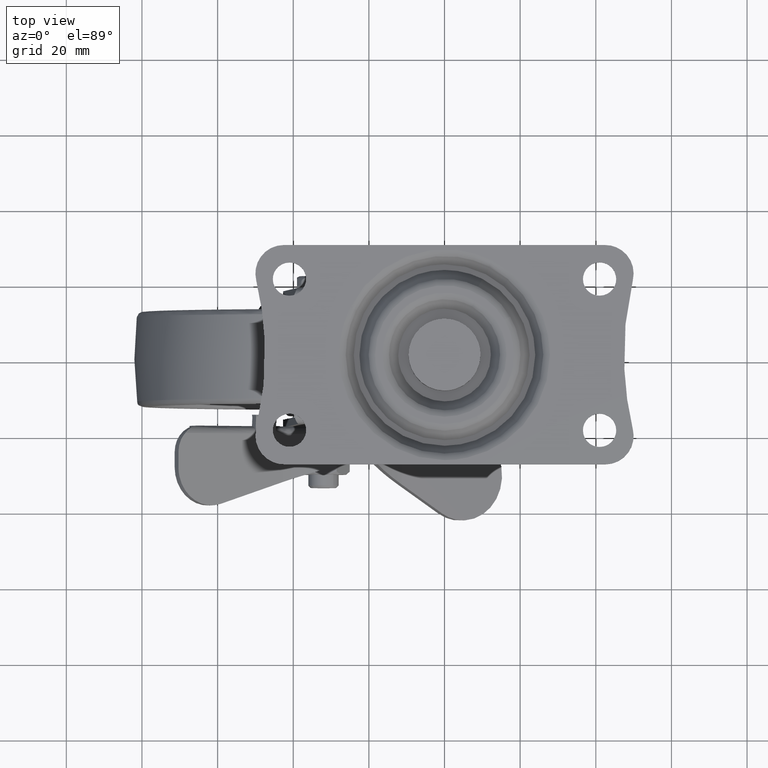
[diagram: clean part render]
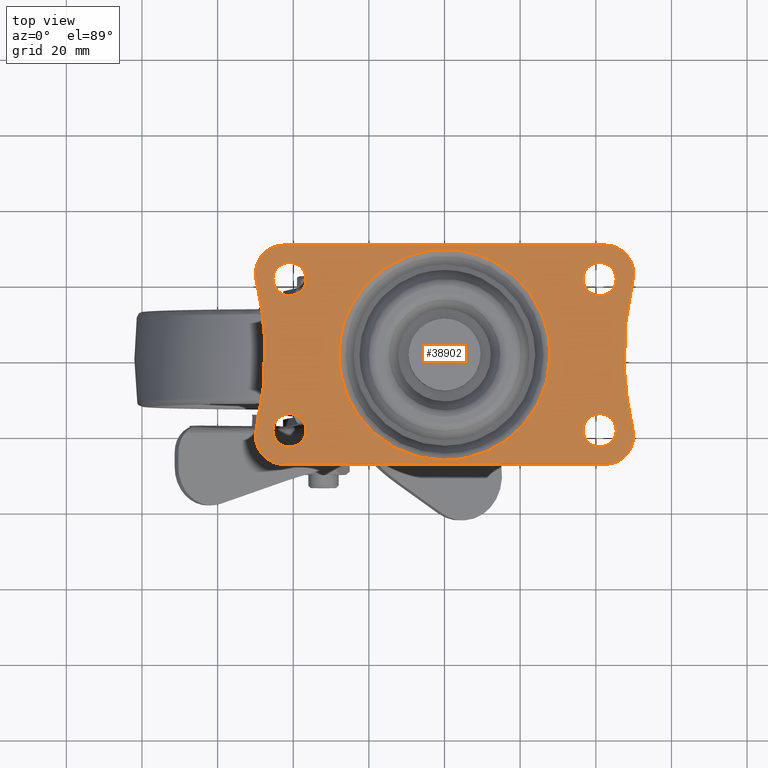
[diagram: same view with one face highlighted and labeled with its STEP entity id]
A machine part, top view. The second image highlights one B-rep face of the part: STEP entity #38902.
In plain terms, the highlighted face is a freeform B-spline surface patch.
Its self-contained STEP definition (entity closure, byte-faithful):
#32688=CARTESIAN_POINT('',(-43.841265772415063,23.359645778603419,2.0));
#32689=VERTEX_POINT('',#32688);
#32690=CARTESIAN_POINT('',(-45.400000100000007,20.0,2.0));
#32691=VERTEX_POINT('',#32690);
#32692=CARTESIAN_POINT('',(-43.841265772415063,23.359645778603419,2.0));
#32693=CARTESIAN_POINT('',(-44.297910684491733,22.974421921917550,2.000000000000003));
#32694=CARTESIAN_POINT('',(-44.924098626456377,22.174133111525929,1.999999999999999));
#32695=CARTESIAN_POINT('',(-45.335552286770223,20.955681271940069,1.999999999999999));
#32696=CARTESIAN_POINT('',(-45.400007563346342,20.278736757898368,2.0));
#32697=CARTESIAN_POINT('',(-45.400000100000007,20.0,2.0));
#32698=B_SPLINE_CURVE_WITH_KNOTS('',3,(#32692,#32693,#32694,#32695,#32696,#32697),.UNSPECIFIED.,.F.,.U.,(4,1,1,4),(0.000000126610487,1.791980629221837,2.986600119089665,3.822845099270182),.UNSPECIFIED.);
#32699=EDGE_CURVE('',#32689,#32691,#32698,.T.);
#32701=CARTESIAN_POINT('',(-40.999995359596333,15.599999900002450,2.0));
#32702=VERTEX_POINT('',#32701);
#32703=CARTESIAN_POINT('',(-45.400000100000007,20.0,2.0));
#32704=CARTESIAN_POINT('',(-45.400607781809661,19.423931304166221,1.999999999999999));
#32705=CARTESIAN_POINT('',(-45.220644751467617,18.524520095141650,1.999999999999998));
#32706=CARTESIAN_POINT('',(-44.539570743215272,17.286905966286380,1.999999999999997));
#32707=CARTESIAN_POINT('',(-43.713068037697902,16.460443572259070,2.000000000000006));
#32708=CARTESIAN_POINT('',(-42.475473924743874,15.779358898505309,1.999999999999988));
#32709=CARTESIAN_POINT('',(-41.576069646600359,15.599383116862450,2.000000000000011));
#32710=CARTESIAN_POINT('',(-40.999995359596333,15.599999900002450,2.0));
#32711=B_SPLINE_CURVE_WITH_KNOTS('',3,(#32703,#32704,#32705,#32706,#32707,#32708,#32709,#32710),.UNSPECIFIED.,.F.,.U.,(4,1,1,1,1,4),(0.000000453793878,1.727920351884094,2.699936220534486,4.211744282343696,5.183760151598372,6.911680047661599),.UNSPECIFIED.);
#32712=EDGE_CURVE('',#32691,#32702,#32711,.T.);
#32714=CARTESIAN_POINT('',(-36.599999900000000,20.0,2.0));
#32715=VERTEX_POINT('',#32714);
#32716=CARTESIAN_POINT('',(-40.999995359596333,15.599999900002450,2.0));
#32717=CARTESIAN_POINT('',(-40.676029447133722,15.599966680798840,2.000000000000001));
#32718=CARTESIAN_POINT('',(-39.920038995695997,15.683750069068511,2.000000000000001));
#32719=CARTESIAN_POINT('',(-38.935462604216788,16.063471376692029,2.0));
#32720=CARTESIAN_POINT('',(-38.107489630315243,16.646852834127259,2.000000000000001));
#32721=CARTESIAN_POINT('',(-37.508903166445542,17.275539651516169,1.999999999999998));
#32722=CARTESIAN_POINT('',(-37.005713955834601,18.070057284172030,2.000000000000005));
#32723=CARTESIAN_POINT('',(-36.675839400117930,18.992077417293881,2.0));
#32724=CARTESIAN_POINT('',(-36.599951778581442,19.676026319193419,2.000000000000006));
#32725=CARTESIAN_POINT('',(-36.599999900000000,20.0,2.0));
#32726=B_SPLINE_CURVE_WITH_KNOTS('',3,(#32716,#32717,#32718,#32719,#32720,#32721,#32722,#32723,#32724,#32725),.UNSPECIFIED.,.F.,.U.,(4,1,1,1,1,1,1,4),(0.000000460138867,0.971939552033052,2.267926207290485,3.131933760526557,3.995801355094923,4.859759915721695,5.939735721904775,6.911674816714666),.UNSPECIFIED.);
#32727=EDGE_CURVE('',#32702,#32715,#32726,.T.);
#32729=CARTESIAN_POINT('',(-37.808353373660353,23.028759234022509,1.999999999968882));
#32730=VERTEX_POINT('',#32729);
#32731=CARTESIAN_POINT('',(-36.599999900000000,20.0,2.0));
#32732=CARTESIAN_POINT('',(-36.599660215936602,20.522020335984472,1.999999999994639));
#32733=CARTESIAN_POINT('',(-36.800517970858103,21.635222263782779,1.999999999983197));
#32734=CARTESIAN_POINT('',(-37.400599769860648,22.600071287989550,1.999999999973289));
#32735=CARTESIAN_POINT('',(-37.808353373660353,23.028759234022509,1.999999999968882));
#32736=B_SPLINE_CURVE_WITH_KNOTS('',3,(#32731,#32732,#32733,#32734,#32735),.UNSPECIFIED.,.F.,.U.,(4,1,4),(0.000000125255836,1.565958961991485,3.340637922588658),.UNSPECIFIED.);
#32737=EDGE_CURVE('',#32715,#32730,#32736,.T.);
#32817=CARTESIAN_POINT('',(-41.000004640403688,24.400000099997548,2.0));
#32818=VERTEX_POINT('',#32817);
#32819=CARTESIAN_POINT('',(-41.000004640403688,24.400000099997548,2.0));
#32820=CARTESIAN_POINT('',(-41.482668478367749,24.400273100476308,1.999999999999998));
#32821=CARTESIAN_POINT('',(-42.512036758557500,24.228826140428591,2.000000000000011));
#32822=CARTESIAN_POINT('',(-43.423907623898501,23.713278709472821,1.999999999999993));
#32823=CARTESIAN_POINT('',(-43.841265772415063,23.359645778603419,2.0));
#32824=B_SPLINE_CURVE_WITH_KNOTS('',3,(#32819,#32820,#32821,#32822,#32823),.UNSPECIFIED.,.F.,.U.,(4,1,4),(0.000000084885139,1.447918023533089,3.088834453250993),.UNSPECIFIED.);
#32825=EDGE_CURVE('',#32818,#32689,#32824,.T.);
#32848=CARTESIAN_POINT('',(-37.808353373660353,23.028759234022509,1.999999999968882));
#32849=CARTESIAN_POINT('',(-38.243109330103223,23.488136943758889,1.999999999973118));
#32850=CARTESIAN_POINT('',(-39.252078322513412,24.170421980182098,1.999999999982962));
#32851=CARTESIAN_POINT('',(-40.441962493426288,24.400525060441819,1.999999999994558));
#32852=CARTESIAN_POINT('',(-41.000004640403688,24.400000099997548,2.0));
#32853=B_SPLINE_CURVE_WITH_KNOTS('',3,(#32848,#32849,#32850,#32851,#32852),.UNSPECIFIED.,.F.,.U.,(4,1,4),(0.000000129538670,1.897087739368949,3.571043816610434),.UNSPECIFIED.);
#32854=EDGE_CURVE('',#32730,#32818,#32853,.T.);
#32885=CARTESIAN_POINT('',(-43.841265772415063,-16.640354221396581,2.0));
#32886=VERTEX_POINT('',#32885);
#32887=CARTESIAN_POINT('',(-45.400000100000007,-20.0,2.0));
#32888=VERTEX_POINT('',#32887);
#32889=CARTESIAN_POINT('',(-43.841265772415063,-16.640354221396581,2.0));
#32890=CARTESIAN_POINT('',(-44.297944122459441,-17.025578615611138,1.999999999999996));
#32891=CARTESIAN_POINT('',(-44.873914087001417,-17.761846773011690,2.000000000000009));
#32892=CARTESIAN_POINT('',(-45.316808580303473,-18.964738673935319,1.999999999999987));
#32893=CARTESIAN_POINT('',(-45.400089114430763,-19.641608075696780,2.000000000000014));
#32894=CARTESIAN_POINT('',(-45.400000100000007,-20.0,2.0));
#32895=B_SPLINE_CURVE_WITH_KNOTS('',3,(#32889,#32890,#32891,#32892,#32893,#32894),.UNSPECIFIED.,.F.,.U.,(4,1,1,4),(0.000000126610975,1.791980629221926,2.747667593237608,3.822845099270195),.UNSPECIFIED.);
#32896=EDGE_CURVE('',#32886,#32888,#32895,.T.);
#32898=CARTESIAN_POINT('',(-40.999995359596340,-24.400000099997548,2.0));
#32899=VERTEX_POINT('',#32898);
#32900=CARTESIAN_POINT('',(-45.400000100000007,-20.0,2.0));
#32901=CARTESIAN_POINT('',(-45.400034501561407,-20.323967444538670,1.999999999999999));
#32902=CARTESIAN_POINT('',(-45.316224157012762,-21.079937864258980,2.000000000000004));
#32903=CARTESIAN_POINT('',(-44.858137376711007,-22.268306735741682,1.999999999999994));
#32904=CARTESIAN_POINT('',(-43.954274757274227,-23.369711784384361,2.000000000000009));
#32905=CARTESIAN_POINT('',(-42.619557003008801,-24.192013220013610,1.999999999999988));
#32906=CARTESIAN_POINT('',(-41.576019266494619,-24.400596673424321,2.000000000000013));
#32907=CARTESIAN_POINT('',(-40.999995359596340,-24.400000099997548,2.0));
#32908=B_SPLINE_CURVE_WITH_KNOTS('',3,(#32900,#32901,#32902,#32903,#32904,#32905,#32906,#32907),.UNSPECIFIED.,.F.,.U.,(4,1,1,1,1,4),(0.000000453788219,0.971940283342268,2.267927917545537,3.779744377931400,5.183760151597596,6.911680047661633),.UNSPECIFIED.);
#32909=EDGE_CURVE('',#32888,#32899,#32908,.T.);
#32911=CARTESIAN_POINT('',(-36.599999900000000,-20.0,2.0));
#32912=VERTEX_POINT('',#32911);
#32913=CARTESIAN_POINT('',(-40.999995359596340,-24.400000099997548,2.0));
#32914=CARTESIAN_POINT('',(-40.604020143094132,-24.400141248669190,2.0));
#32915=CARTESIAN_POINT('',(-39.848166653534307,-24.297212129517298,2.0));
#32916=CARTESIAN_POINT('',(-38.675172635750457,-23.811736003103078,2.000000000000002));
#32917=CARTESIAN_POINT('',(-37.771588425417228,-23.070165803609541,1.999999999999998));
#32918=CARTESIAN_POINT('',(-37.167829671779259,-22.212299670192198,2.000000000000004));
#32919=CARTESIAN_POINT('',(-36.731366590510639,-21.259710259592190,1.999999999999993));
#32920=CARTESIAN_POINT('',(-36.599619817956643,-20.504027489536021,1.999999999999997));
#32921=CARTESIAN_POINT('',(-36.599999900000000,-20.0,2.0));
#32922=B_SPLINE_CURVE_WITH_KNOTS('',3,(#32913,#32914,#32915,#32916,#32917,#32918,#32919,#32920,#32921),.UNSPECIFIED.,.F.,.U.,(4,1,1,1,1,1,4),(0.000000460142762,1.187911892418697,2.267926207293846,3.779741512305171,4.643749068792261,5.399748950830405,6.911674816714607),.UNSPECIFIED.);
#32923=EDGE_CURVE('',#32899,#32912,#32922,.T.);
#32925=CARTESIAN_POINT('',(-37.808353373660353,-16.971240765977491,1.999999999968882));
#32926=VERTEX_POINT('',#32925);
#32927=CARTESIAN_POINT('',(-36.599999900000000,-20.0,2.0));
#32928=CARTESIAN_POINT('',(-36.599576135626677,-19.477965254655579,1.999999999994633));
#32929=CARTESIAN_POINT('',(-36.800646102745709,-18.364803885605319,1.999999999983210));
#32930=CARTESIAN_POINT('',(-37.400551592579014,-17.399918039219560,1.999999999973283));
#32931=CARTESIAN_POINT('',(-37.808353373660353,-16.971240765977491,1.999999999968882));
#32932=B_SPLINE_CURVE_WITH_KNOTS('',3,(#32927,#32928,#32929,#32930,#32931),.UNSPECIFIED.,.F.,.U.,(4,1,4),(0.000000125254986,1.565958961991247,3.340637922588661),.UNSPECIFIED.);
#32933=EDGE_CURVE('',#32912,#32926,#32932,.T.);
#33011=CARTESIAN_POINT('',(-41.000004640403688,-15.599999900002450,2.0));
#33012=VERTEX_POINT('',#33011);
#33013=CARTESIAN_POINT('',(-41.000004640403688,-15.599999900002450,2.0));
#33014=CARTESIAN_POINT('',(-41.547035457674838,-15.599483547155550,1.999999999999997));
#33015=CARTESIAN_POINT('',(-42.576212063734353,-15.794674579979580,2.000000000000003));
#33016=CARTESIAN_POINT('',(-43.472901530817850,-16.328469134564632,2.000000000000003));
#33017=CARTESIAN_POINT('',(-43.841265772415063,-16.640354221396581,2.0));
#33018=B_SPLINE_CURVE_WITH_KNOTS('',3,(#33013,#33014,#33015,#33016,#33017),.UNSPECIFIED.,.F.,.U.,(4,1,4),(0.000000084884503,1.640915776160015,3.088834453251002),.UNSPECIFIED.);
#33019=EDGE_CURVE('',#33012,#32886,#33018,.T.);
#33041=CARTESIAN_POINT('',(-37.808353373660353,-16.971240765977491,1.999999999968882));
#33042=CARTESIAN_POINT('',(-38.141064330219997,-16.620284587290652,1.999999999972128));
#33043=CARTESIAN_POINT('',(-38.833370511125651,-16.098020732296909,1.999999999978875));
#33044=CARTESIAN_POINT('',(-39.958501875786901,-15.681015891984201,1.999999999989850));
#33045=CARTESIAN_POINT('',(-40.665226600029420,-15.599945625704761,1.999999999996732));
#33046=CARTESIAN_POINT('',(-41.000004640403688,-15.599999900002450,2.0));
#33047=B_SPLINE_CURVE_WITH_KNOTS('',3,(#33041,#33042,#33043,#33044,#33045,#33046),.UNSPECIFIED.,.F.,.U.,(4,1,1,4),(0.000000129539557,1.450770007751548,2.566680983419448,3.571043816610432),.UNSPECIFIED.);
#33048=EDGE_CURVE('',#32926,#33012,#33047,.T.);
#33079=CARTESIAN_POINT('',(38.158734227584937,23.359645778603419,2.0));
#33080=VERTEX_POINT('',#33079);
#33081=CARTESIAN_POINT('',(36.599999900000000,20.0,2.0));
#33082=VERTEX_POINT('',#33081);
#33083=CARTESIAN_POINT('',(38.158734227584937,23.359645778603419,2.0));
#33084=CARTESIAN_POINT('',(37.702058812783697,22.974421723235469,1.999999999999996));
#33085=CARTESIAN_POINT('',(37.126084906330412,22.238152538582369,2.000000000000005));
#33086=CARTESIAN_POINT('',(36.683190821877638,21.035262032408749,1.999999999999994));
#33087=CARTESIAN_POINT('',(36.599911892731569,20.358388893084790,2.000000000000007));
#33088=CARTESIAN_POINT('',(36.599999900000000,20.0,2.0));
#33089=B_SPLINE_CURVE_WITH_KNOTS('',3,(#33083,#33084,#33085,#33086,#33087,#33088),.UNSPECIFIED.,.F.,.U.,(4,1,1,4),(0.000000126609319,1.791980629221591,2.747667593237516,3.822845099270190),.UNSPECIFIED.);
#33090=EDGE_CURVE('',#33080,#33082,#33089,.T.);
#33092=CARTESIAN_POINT('',(41.000004640403667,15.599999900002450,2.0));
#33093=VERTEX_POINT('',#33092);
#33094=CARTESIAN_POINT('',(36.599999900000000,20.0,2.0));
#33095=CARTESIAN_POINT('',(36.599310131613983,19.423896235975231,2.000000000000001));
#33096=CARTESIAN_POINT('',(36.765042728769792,18.596536449218089,1.999999999999998));
#33097=CARTESIAN_POINT('',(37.347400217043173,17.473961179307182,1.999999999999991));
#33098=CARTESIAN_POINT('',(37.989101529249773,16.730068055101452,2.000000000000018));
#33099=CARTESIAN_POINT('',(38.876375245152381,16.105241301741309,1.999999999999979));
#33100=CARTESIAN_POINT('',(39.848148215939823,15.702749678452790,2.000000000000004));
#33101=CARTESIAN_POINT('',(40.604025221004839,15.599857729474740,2.0));
#33102=CARTESIAN_POINT('',(41.000004640403667,15.599999900002450,2.0));
#33103=B_SPLINE_CURVE_WITH_KNOTS('',3,(#33094,#33095,#33096,#33097,#33098,#33099,#33100,#33101,#33102),.UNSPECIFIED.,.F.,.U.,(4,1,1,1,1,1,4),(0.000000453793280,1.727920351883699,2.483900422959851,3.779744377932775,4.643752584677594,5.723767716651169,6.911680047661629),.UNSPECIFIED.);
#33104=EDGE_CURVE('',#33082,#33093,#33103,.T.);
#33106=CARTESIAN_POINT('',(45.400000100000007,20.0,2.0));
#33107=VERTEX_POINT('',#33106);
#33108=CARTESIAN_POINT('',(41.000004640403667,15.599999900002450,2.0));
#33109=CARTESIAN_POINT('',(41.576071845699140,15.599392930738150,2.000000000000001));
#33110=CARTESIAN_POINT('',(42.475490195610213,15.779346738342420,2.0));
#33111=CARTESIAN_POINT('',(43.713067453243497,16.460453464487539,1.999999999999999));
#33112=CARTESIAN_POINT('',(44.487938650094037,17.235221887885370,2.000000000000003));
#33113=CARTESIAN_POINT('',(45.197463393300161,18.452864674061370,1.999999999999996));
#33114=CARTESIAN_POINT('',(45.401053393963537,19.351784646075320,2.0));
#33115=CARTESIAN_POINT('',(45.400000100000007,20.0,2.0));
#33116=B_SPLINE_CURVE_WITH_KNOTS('',3,(#33108,#33109,#33110,#33111,#33112,#33113,#33114,#33115),.UNSPECIFIED.,.F.,.U.,(4,1,1,1,1,4),(0.000000460139980,1.727919049659939,2.699934183081793,4.211741092349952,4.967763505592465,6.911674816714671),.UNSPECIFIED.);
#33117=EDGE_CURVE('',#33093,#33107,#33116,.T.);
#33119=CARTESIAN_POINT('',(44.191646626339647,23.028759234022509,1.999999999968882));
#33120=VERTEX_POINT('',#33119);
#33121=CARTESIAN_POINT('',(45.400000100000007,20.0,2.0));
#33122=CARTESIAN_POINT('',(45.400700293458797,20.591649134151741,1.999999999993928));
#33123=CARTESIAN_POINT('',(45.171770642672449,21.704557294880662,1.999999999982478));
#33124=CARTESIAN_POINT('',(44.551254220040121,22.650351881443399,1.999999999972773));
#33125=CARTESIAN_POINT('',(44.191646626339647,23.028759234022509,1.999999999968882));
#33126=B_SPLINE_CURVE_WITH_KNOTS('',3,(#33121,#33122,#33123,#33124,#33125),.UNSPECIFIED.,.F.,.U.,(4,1,4),(0.000000125256034,1.774679085938028,3.340637922588673),.UNSPECIFIED.);
#33127=EDGE_CURVE('',#33107,#33120,#33126,.T.);
#33206=CARTESIAN_POINT('',(40.999995359596319,24.400000099997548,2.0));
#33207=VERTEX_POINT('',#33206);
#33208=CARTESIAN_POINT('',(40.999995359596319,24.400000099997548,2.0));
#33209=CARTESIAN_POINT('',(40.613901366819071,24.400089541019799,1.999999999999998));
#33210=CARTESIAN_POINT('',(39.584292274245932,24.263725099572380,2.0));
#33211=CARTESIAN_POINT('',(38.649558236644928,23.776140529162390,2.000000000000001));
#33212=CARTESIAN_POINT('',(38.158734227584937,23.359645778603419,2.0));
#33213=B_SPLINE_CURVE_WITH_KNOTS('',3,(#33208,#33209,#33210,#33211,#33212),.UNSPECIFIED.,.F.,.U.,(4,1,4),(0.000000084884445,1.158315503623514,3.088834453251010),.UNSPECIFIED.);
#33214=EDGE_CURVE('',#33207,#33080,#33213,.T.);
#33236=CARTESIAN_POINT('',(44.191646626339647,23.028759234022509,1.999999999968882));
#33237=CARTESIAN_POINT('',(43.858972200137437,23.379793116424430,1.999999999972127));
#33238=CARTESIAN_POINT('',(43.226780187222730,23.856419398200231,1.999999999978286));
#33239=CARTESIAN_POINT('',(42.115836255245611,24.300690841448649,1.999999999989125));
#33240=CARTESIAN_POINT('',(41.409180820228762,24.400135621187751,1.999999999996009));
#33241=CARTESIAN_POINT('',(40.999995359596319,24.400000099997548,2.0));
#33242=B_SPLINE_CURVE_WITH_KNOTS('',3,(#33236,#33237,#33238,#33239,#33240,#33241),.UNSPECIFIED.,.F.,.U.,(4,1,1,4),(0.000000129538840,1.450770007751356,2.343492784761530,3.571043816610422),.UNSPECIFIED.);
#33243=EDGE_CURVE('',#33120,#33207,#33242,.T.);
#33274=CARTESIAN_POINT('',(38.158734227584937,-16.640354221396581,2.0));
#33275=VERTEX_POINT('',#33274);
#33276=CARTESIAN_POINT('',(36.599999900000000,-20.0,2.0));
#33277=VERTEX_POINT('',#33276);
#33278=CARTESIAN_POINT('',(38.158734227584937,-16.640354221396581,2.0));
#33279=CARTESIAN_POINT('',(37.824127276871423,-16.923077383848749,1.999999999999998));
#33280=CARTESIAN_POINT('',(37.373351620856958,-17.438119453086390,2.000000000000002));
#33281=CARTESIAN_POINT('',(36.772973986927283,-18.566948686573308,2.0));
#33282=CARTESIAN_POINT('',(36.599236853975519,-19.402533943545610,2.000000000000003));
#33283=CARTESIAN_POINT('',(36.599999900000000,-20.0,2.0));
#33284=B_SPLINE_CURVE_WITH_KNOTS('',3,(#33278,#33279,#33280,#33281,#33282,#33283),.UNSPECIFIED.,.F.,.U.,(4,1,1,4),(0.000000126610369,1.314123081121320,2.030864596559126,3.822845099270190),.UNSPECIFIED.);
#33285=EDGE_CURVE('',#33275,#33277,#33284,.T.);
#33287=CARTESIAN_POINT('',(41.000004640403667,-24.400000099997548,2.0));
#33288=VERTEX_POINT('',#33287);
#33289=CARTESIAN_POINT('',(36.599999900000000,-20.0,2.0));
#33290=CARTESIAN_POINT('',(36.599966735913171,-20.323969942578259,2.000000000000001));
#33291=CARTESIAN_POINT('',(36.683774429641034,-21.079934129278541,1.999999999999998));
#33292=CARTESIAN_POINT('',(37.141863349434608,-22.268308701461969,2.000000000000006));
#33293=CARTESIAN_POINT('',(38.045725021565531,-23.369711744615110,1.999999999999993));
#33294=CARTESIAN_POINT('',(39.380442966441031,-24.192012238945079,2.000000000000005));
#33295=CARTESIAN_POINT('',(40.423980788776312,-24.400597124536290,1.999999999999998));
#33296=CARTESIAN_POINT('',(41.000004640403667,-24.400000099997548,2.0));
#33297=B_SPLINE_CURVE_WITH_KNOTS('',3,(#33289,#33290,#33291,#33292,#33293,#33294,#33295,#33296),.UNSPECIFIED.,.F.,.U.,(4,1,1,1,1,4),(0.000000453793152,0.971940283346328,2.267927917548367,3.779744377933133,5.183760151597977,6.911680047661641),.UNSPECIFIED.);
#33298=EDGE_CURVE('',#33277,#33288,#33297,.T.);
#33300=CARTESIAN_POINT('',(45.400000100000007,-20.0,2.0));
#33301=VERTEX_POINT('',#33300);
#33302=CARTESIAN_POINT('',(41.000004640403667,-24.400000099997548,2.0));
#33303=CARTESIAN_POINT('',(41.648123677211238,-24.400988490607158,1.999999999999999));
#33304=CARTESIAN_POINT('',(42.763170850110697,-24.148829918783129,2.000000000000004));
#33305=CARTESIAN_POINT('',(44.116055380937432,-23.220651284664559,1.999999999999994));
#33306=CARTESIAN_POINT('',(44.921228312130822,-22.134967331738430,2.000000000000012));
#33307=CARTESIAN_POINT('',(45.324128686437717,-21.007898973175980,1.999999999999994));
#33308=CARTESIAN_POINT('',(45.400045079172862,-20.323971836244990,2.000000000000001));
#33309=CARTESIAN_POINT('',(45.400000100000007,-20.0,2.0));
#33310=B_SPLINE_CURVE_WITH_KNOTS('',3,(#33302,#33303,#33304,#33305,#33306,#33307,#33308,#33309),.UNSPECIFIED.,.F.,.U.,(4,1,1,1,1,4),(0.000000460140767,1.943911772386969,3.347906009618380,4.859759915722920,5.939735721905360,6.911674816714633),.UNSPECIFIED.);
#33311=EDGE_CURVE('',#33288,#33301,#33310,.T.);
#33313=CARTESIAN_POINT('',(44.191646626339647,-16.971240765977491,1.999999999968882));
#33314=VERTEX_POINT('',#33313);
#33315=CARTESIAN_POINT('',(45.400000100000007,-20.0,2.0));
#33316=CARTESIAN_POINT('',(45.400221511531832,-19.547603577149410,1.999999999995352));
#33317=CARTESIAN_POINT('',(45.275474447805280,-18.747380211655621,1.999999999987130));
#33318=CARTESIAN_POINT('',(44.810909382234570,-17.726764749346529,1.999999999976644));
#33319=CARTESIAN_POINT('',(44.407265641416863,-17.198380396016809,1.999999999971214));
#33320=CARTESIAN_POINT('',(44.191646626339647,-16.971240765977491,1.999999999968882));
#33321=B_SPLINE_CURVE_WITH_KNOTS('',3,(#33315,#33316,#33317,#33318,#33319,#33320),.UNSPECIFIED.,.F.,.U.,(4,1,1,4),(0.000000125255855,1.357158161508154,2.401079657008411,3.340637922588672),.UNSPECIFIED.);
#33322=EDGE_CURVE('',#33301,#33314,#33321,.T.);
#33400=CARTESIAN_POINT('',(40.999995359596319,-15.599999900002450,2.0));
#33401=VERTEX_POINT('',#33400);
#33402=CARTESIAN_POINT('',(40.999995359596319,-15.599999900002450,2.0));
#33403=CARTESIAN_POINT('',(40.452976886484500,-15.599565285710071,2.0));
#33404=CARTESIAN_POINT('',(39.423773143816177,-15.794575653727740,2.000000000000003));
#33405=CARTESIAN_POINT('',(38.527092373260153,-16.328474129902869,1.999999999999998));
#33406=CARTESIAN_POINT('',(38.158734227584937,-16.640354221396581,2.0));
#33407=B_SPLINE_CURVE_WITH_KNOTS('',3,(#33402,#33403,#33404,#33405,#33406),.UNSPECIFIED.,.F.,.U.,(4,1,4),(0.000000084884916,1.640915776160376,3.088834453251018),.UNSPECIFIED.);
#33408=EDGE_CURVE('',#33401,#33275,#33407,.T.);
#33430=CARTESIAN_POINT('',(44.191646626339647,-16.971240765977491,1.999999999968882));
#33431=CARTESIAN_POINT('',(43.858973415516793,-16.620209135255099,1.999999999972124));
#33432=CARTESIAN_POINT('',(43.226778453453129,-16.143579393390649,1.999999999978288));
#33433=CARTESIAN_POINT('',(42.115837928755703,-15.699309772077729,1.999999999989122));
#33434=CARTESIAN_POINT('',(41.409180681295702,-15.599863927600151,1.999999999996006));
#33435=CARTESIAN_POINT('',(40.999995359596319,-15.599999900002450,2.0));
#33436=B_SPLINE_CURVE_WITH_KNOTS('',3,(#33430,#33431,#33432,#33433,#33434,#33435),.UNSPECIFIED.,.F.,.U.,(4,1,1,4),(0.000000129539970,1.450770007751691,2.343492784761506,3.571043816610433),.UNSPECIFIED.);
#33437=EDGE_CURVE('',#33314,#33401,#33436,.T.);
#37339=CARTESIAN_POINT('',(-24.928386694279091,12.504981192950510,2.0));
#37340=VERTEX_POINT('',#37339);
#37350=CARTESIAN_POINT('',(-27.889048365125149,-1.421085E-014,2.0));
#37351=VERTEX_POINT('',#37350);
#37352=CARTESIAN_POINT('',(-27.889048365125149,-1.421085E-014,2.0));
#37353=CARTESIAN_POINT('',(-27.889257975799751,1.823516180448844,1.999999999999999));
#37354=CARTESIAN_POINT('',(-27.463615731900610,6.145845322961685,2.000000000000002));
#37355=CARTESIAN_POINT('',(-26.049742513635032,10.271697811085151,1.999999999999996));
#37356=CARTESIAN_POINT('',(-24.928386694279091,12.504981192950510,2.0));
#37357=B_SPLINE_CURVE_WITH_KNOTS('',3,(#37352,#37353,#37354,#37355,#37356),.UNSPECIFIED.,.F.,.U.,(4,1,4),(0.000000016230569,5.470540221189050,12.967200874113759),.UNSPECIFIED.);
#37358=EDGE_CURVE('',#37351,#37340,#37357,.T.);
#37360=CARTESIAN_POINT('',(-0.000003912872110,-27.889048365124889,2.0));
#37361=VERTEX_POINT('',#37360);
#37362=CARTESIAN_POINT('',(-0.000003912872110,-27.889048365124889,2.0));
#37363=CARTESIAN_POINT('',(-1.140820982408843,-27.889059587492980,2.000000000000001));
#37364=CARTESIAN_POINT('',(-3.878814364061489,-27.720890393416191,1.999999999999998));
#37365=CARTESIAN_POINT('',(-8.471832026041817,-26.748849598806260,1.999999999999999));
#37366=CARTESIAN_POINT('',(-12.805529383294481,-24.922356353075230,2.000000000000014));
#37367=CARTESIAN_POINT('',(-16.957953406236609,-22.292943734165259,1.999999999999981));
#37368=CARTESIAN_POINT('',(-20.221150915694022,-19.407369092396682,2.000000000000014));
#37369=CARTESIAN_POINT('',(-23.223301991459319,-15.656272882800970,1.999999999999989));
#37370=CARTESIAN_POINT('',(-25.142199249708479,-12.268873332605530,2.0));
#37371=CARTESIAN_POINT('',(-26.669060702435321,-8.450863781523450,1.999999999999993));
#37372=CARTESIAN_POINT('',(-27.642823932439089,-4.563319772271763,2.000000000000035));
#37373=CARTESIAN_POINT('',(-27.889131141365951,-1.483080518457500,1.999999999999953));
#37374=CARTESIAN_POINT('',(-27.889048365125149,-1.421085E-014,2.0));
#37375=B_SPLINE_CURVE_WITH_KNOTS('',3,(#37362,#37363,#37364,#37365,#37366,#37367,#37368,#37369,#37370,#37371,#37372,#37373,#37374),.UNSPECIFIED.,.F.,.U.,(4,1,1,1,1,1,1,1,1,1,4),(0.000000032609094,3.422480338504840,8.214027858573878,14.032361576362330,17.454867101628700,22.930892980488661,27.037909849033600,31.829448519394219,34.567493057528367,39.359020276008081,43.808287401068462),.UNSPECIFIED.);
#37376=EDGE_CURVE('',#37361,#37351,#37375,.T.);
#37378=CARTESIAN_POINT('',(27.889048365125149,-1.421085E-014,2.0));
#37379=VERTEX_POINT('',#37378);
#37380=CARTESIAN_POINT('',(27.889048365125149,-1.421085E-014,2.0));
#37381=CARTESIAN_POINT('',(27.889184384075339,-1.597162602909583,2.000000000000002));
#37382=CARTESIAN_POINT('',(27.613908219037292,-4.791447161904697,1.999999999999996));
#37383=CARTESIAN_POINT('',(26.417505186183309,-9.331156895280033,2.000000000000003));
#37384=CARTESIAN_POINT('',(24.677640290492310,-13.191763523075331,2.0));
#37385=CARTESIAN_POINT('',(22.415141232625810,-16.764722432694811,1.999999999999995));
#37386=CARTESIAN_POINT('',(19.722693360121621,-19.886078585163091,2.000000000000026));
#37387=CARTESIAN_POINT('',(16.396515438720879,-22.684730124591319,1.999999999999987));
#37388=CARTESIAN_POINT('',(13.085264305314301,-24.725014400429529,2.000000000000001));
#37389=CARTESIAN_POINT('',(9.532508146468125,-26.299866396461020,2.000000000000012));
#37390=CARTESIAN_POINT('',(5.247709787056155,-27.542475154039170,1.999999999999954));
#37391=CARTESIAN_POINT('',(1.939435074053966,-27.889368986413480,2.000000000000072));
#37392=CARTESIAN_POINT('',(-0.000003912872110,-27.889048365124889,2.0));
#37393=B_SPLINE_CURVE_WITH_KNOTS('',3,(#37380,#37381,#37382,#37383,#37384,#37385,#37386,#37387,#37388,#37389,#37390,#37391,#37392),.UNSPECIFIED.,.F.,.U.,(4,1,1,1,1,1,1,1,1,1,4),(0.000000031220104,4.791491553801933,9.583050545597132,14.032362987718420,17.454868856362900,22.246394604063049,26.353413485098280,30.460431913522878,33.882986000819358,37.990024887618731,43.808291811815153),.UNSPECIFIED.);
#37394=EDGE_CURVE('',#37379,#37361,#37393,.T.);
#37396=CARTESIAN_POINT('',(12.504981192950520,24.928386694279080,2.0));
#37397=VERTEX_POINT('',#37396);
#37398=CARTESIAN_POINT('',(12.504981192950520,24.928386694279080,2.0));
#37399=CARTESIAN_POINT('',(14.515358472750931,23.920527806609609,2.000000000000010));
#37400=CARTESIAN_POINT('',(17.952666751101489,21.638233432596010,1.999999999999985));
#37401=CARTESIAN_POINT('',(21.975537584987659,17.444488897744559,1.999999999999999));
#37402=CARTESIAN_POINT('',(24.604886164396579,13.382481153165850,2.000000000000003));
#37403=CARTESIAN_POINT('',(26.259037821135880,9.624586295436805,2.000000000000002));
#37404=CARTESIAN_POINT('',(27.526515141740969,5.300622267971918,1.999999999999992));
#37405=CARTESIAN_POINT('',(27.889412099489480,2.088216003179491,2.000000000000002));
#37406=CARTESIAN_POINT('',(27.889048365125149,-1.421085E-014,2.0));
#37407=B_SPLINE_CURVE_WITH_KNOTS('',3,(#37398,#37399,#37400,#37401,#37402,#37403,#37404,#37405,#37406),.UNSPECIFIED.,.F.,.U.,(4,1,1,1,1,1,4),(0.000000101823769,6.746448132245480,12.288188202233259,17.347971215196040,21.203125719687979,24.576378341039948,30.840938274338551),.UNSPECIFIED.);
#37408=EDGE_CURVE('',#37397,#37379,#37407,.T.);
#37442=CARTESIAN_POINT('',(-24.928386694279091,12.504981192950510,2.0));
#37443=CARTESIAN_POINT('',(-24.212359345323339,13.932647990416600,1.999999999999998));
#37444=CARTESIAN_POINT('',(-22.534052320063591,16.664405676480140,2.000000000000003));
#37445=CARTESIAN_POINT('',(-19.429119740066131,20.185727854912230,1.999999999999999));
#37446=CARTESIAN_POINT('',(-15.610113005215741,23.289606700725241,2.000000000000003));
#37447=CARTESIAN_POINT('',(-11.897170822517930,25.339912426652340,1.999999999999995));
#37448=CARTESIAN_POINT('',(-8.044750901029032,26.777695549132691,2.000000000000018));
#37449=CARTESIAN_POINT('',(-4.261926244212225,27.681729709167641,1.999999999999985));
#37450=CARTESIAN_POINT('',(-0.151333416637101,27.990558009126669,2.000000000000004));
#37451=CARTESIAN_POINT('',(4.180710286524989,27.677012898459591,2.000000000000012));
#37452=CARTESIAN_POINT('',(8.315688240849157,26.754405835789790,1.999999999999963));
#37453=CARTESIAN_POINT('',(11.179385498228580,25.593460557699419,2.000000000000031));
#37454=CARTESIAN_POINT('',(12.504981192950520,24.928386694279080,2.0));
#37455=B_SPLINE_CURVE_WITH_KNOTS('',3,(#37442,#37443,#37444,#37445,#37446,#37447,#37448,#37449,#37450,#37451,#37452,#37453,#37454),.UNSPECIFIED.,.F.,.U.,(4,1,1,1,1,1,1,1,1,1,4),(0.000000031892554,4.791491308791521,9.583050054707300,14.032362268811220,19.508390999374910,22.246393461368761,26.353412135318418,31.144939589768189,34.567494765198433,39.359022219596532,43.808289565200873),.UNSPECIFIED.);
#37456=EDGE_CURVE('',#37340,#37397,#37455,.T.);
#38756=CARTESIAN_POINT('',(-54.994838761232820,31.897100037434750,2.0));
#38757=CARTESIAN_POINT('',(54.994881721000297,31.897100037434750,2.0));
#38758=CARTESIAN_POINT('',(-54.994838761232820,-31.897104593116051,2.0));
#38759=CARTESIAN_POINT('',(54.994881721000297,-31.897104593116051,2.0));
#38760=B_SPLINE_SURFACE_WITH_KNOTS('',1,1,((#38756,#38758),(#38757,#38759)),.UNSPECIFIED.,.F.,.F.,.U.,(2,2),(2,2),(0.0,109.989720482233100),(0.0,63.794204630550801),.UNSPECIFIED.);
#38761=CARTESIAN_POINT('',(-49.794594143545098,-19.756756964460099,2.0));
#38762=VERTEX_POINT('',#38761);
#38763=CARTESIAN_POINT('',(-49.794595056304097,19.756760783900798,2.0));
#38764=VERTEX_POINT('',#38763);
#38765=CARTESIAN_POINT('',(-49.794594143545098,-19.756756964460099,2.0));
#38766=CARTESIAN_POINT('',(-48.683845513459367,-15.110572401129730,2.000000000000004));
#38767=CARTESIAN_POINT('',(-47.467520044497377,-7.073038272026916,1.999999999999985));
#38768=CARTESIAN_POINT('',(-47.369908206266352,6.242251284679089,2.000000000000015));
#38769=CARTESIAN_POINT('',(-48.587090908839301,14.706578939075190,1.999999999999990));
#38770=CARTESIAN_POINT('',(-49.794595056304097,19.756760783900798,2.0));
#38771=B_SPLINE_CURVE_WITH_KNOTS('',3,(#38765,#38766,#38767,#38768,#38769,#38770),.UNSPECIFIED.,.F.,.U.,(4,1,1,4),(8.869229E-009,14.331262195908071,24.300804886103592,39.878263886740363),.UNSPECIFIED.);
#38772=EDGE_CURVE('',#38762,#38764,#38771,.T.);
#38773=ORIENTED_EDGE('',*,*,#38772,.F.);
#38774=CARTESIAN_POINT('',(-42.500000000000000,-29.000003000000000,2.0));
#38775=VERTEX_POINT('',#38774);
#38776=CARTESIAN_POINT('',(-49.794594143545098,-19.756756964460099,2.0));
#38777=CARTESIAN_POINT('',(-49.967034850953702,-20.476912326795631,2.000000000000002));
#38778=CARTESIAN_POINT('',(-50.086567713246467,-21.862042218514279,1.999999999999996));
#38779=CARTESIAN_POINT('',(-49.720173961102617,-23.782496379729938,2.000000000000006));
#38780=CARTESIAN_POINT('',(-49.027283111120553,-25.299589863298021,1.999999999999989));
#38781=CARTESIAN_POINT('',(-48.001184474846212,-26.698800811980529,2.0));
#38782=CARTESIAN_POINT('',(-46.672475689598663,-27.829902330425931,1.999999999999999));
#38783=CARTESIAN_POINT('',(-44.756382112177960,-28.758623986534051,1.999999999999999));
#38784=CARTESIAN_POINT('',(-43.346335199709252,-29.000558826478368,1.999999999999999));
#38785=CARTESIAN_POINT('',(-42.500000000000000,-29.000003000000000,2.0));
#38786=B_SPLINE_CURVE_WITH_KNOTS('',3,(#38776,#38777,#38778,#38779,#38780,#38781,#38782,#38783,#38784,#38785),.UNSPECIFIED.,.F.,.U.,(4,1,1,1,1,1,1,4),(0.000000457885228,2.221435149479657,4.125599810487616,5.818234807030337,7.193248334424031,9.309012245038833,11.001618693635420,13.540420483248241),.UNSPECIFIED.);
#38787=EDGE_CURVE('',#38762,#38775,#38786,.T.);
#38788=ORIENTED_EDGE('',*,*,#38787,.T.);
#38789=CARTESIAN_POINT('',(42.500002617993950,-28.999999999999549,2.0));
#38790=VERTEX_POINT('',#38789);
#38791=CARTESIAN_POINT('',(42.500002617993950,-28.999999999999549,2.0));
#38792=CARTESIAN_POINT('',(-42.500000000000000,-29.000003000000000,2.0));
#38793=QUASI_UNIFORM_CURVE('',1,(#38791,#38792),.UNSPECIFIED.,.F.,.U.);
#38794=EDGE_CURVE('',#38790,#38775,#38793,.T.);
#38795=ORIENTED_EDGE('',*,*,#38794,.F.);
#38796=CARTESIAN_POINT('',(49.794594135559400,-19.756756931044251,2.0));
#38797=VERTEX_POINT('',#38796);
#38798=CARTESIAN_POINT('',(42.500002617993950,-28.999999999999549,2.0));
#38799=CARTESIAN_POINT('',(43.275819682942988,-29.000453638819909,2.000000000000001));
#38800=CARTESIAN_POINT('',(44.368609452771651,-28.828782576500519,1.999999999999999));
#38801=CARTESIAN_POINT('',(46.145043557227893,-28.132369229993088,1.999999999999993));
#38802=CARTESIAN_POINT('',(47.501842239977712,-27.205317421118700,2.000000000000022));
#38803=CARTESIAN_POINT('',(48.610707084306043,-25.915499234614298,1.999999999999967));
#38804=CARTESIAN_POINT('',(49.312967913434989,-24.728363893636661,2.000000000000024));
#38805=CARTESIAN_POINT('',(49.722448942337387,-23.633099792259451,1.999999999999995));
#38806=CARTESIAN_POINT('',(50.071026345378030,-21.937931013605041,1.999999999999995));
#38807=CARTESIAN_POINT('',(50.016861169714559,-20.682693530188981,2.000000000000011));
#38808=CARTESIAN_POINT('',(49.794594135559400,-19.756756931044251,2.0));
#38809=B_SPLINE_CURVE_WITH_KNOTS('',3,(#38798,#38799,#38800,#38801,#38802,#38803,#38804,#38805,#38806,#38807,#38808),.UNSPECIFIED.,.F.,.U.,(4,1,1,1,1,1,1,1,4),(0.000000457914897,2.327255805131632,3.279317920196272,5.712389492116650,7.193245883068971,8.356967236677678,9.837950441943871,10.684240066570140,13.540415868839030),.UNSPECIFIED.);
#38810=EDGE_CURVE('',#38790,#38797,#38809,.T.);
#38811=ORIENTED_EDGE('',*,*,#38810,.T.);
#38812=CARTESIAN_POINT('',(49.794603130326699,19.756754781498149,2.0));
#38813=VERTEX_POINT('',#38812);
#38814=CARTESIAN_POINT('',(49.794603130326699,19.756754781498149,2.0));
#38815=CARTESIAN_POINT('',(48.949653807741761,16.221590806269230,2.000000000000003));
#38816=CARTESIAN_POINT('',(47.837868829525021,9.760547700957158,1.999999999999995));
#38817=CARTESIAN_POINT('',(47.295002002586159,-0.103233947454465,2.000000000000003));
#38818=CARTESIAN_POINT('',(47.826645523320529,-9.763242179157492,2.0));
#38819=CARTESIAN_POINT('',(48.997946296372000,-16.423597574984210,1.999999999999992));
#38820=CARTESIAN_POINT('',(49.794594135559400,-19.756756931044251,2.0));
#38821=B_SPLINE_CURVE_WITH_KNOTS('',3,(#38814,#38815,#38816,#38817,#38818,#38819,#38820),.UNSPECIFIED.,.F.,.U.,(4,1,1,1,4),(8.857690E-009,10.904211639453310,19.627610234780970,29.597144099310530,39.878257439813311),.UNSPECIFIED.);
#38822=EDGE_CURVE('',#38813,#38797,#38821,.T.);
#38823=ORIENTED_EDGE('',*,*,#38822,.F.);
#38824=CARTESIAN_POINT('',(42.500000000000000,29.0,2.0));
#38825=VERTEX_POINT('',#38824);
#38826=CARTESIAN_POINT('',(49.794603130326699,19.756754781498149,2.0));
#38827=CARTESIAN_POINT('',(49.950505710210322,20.408332725714668,1.999999999999996));
#38828=CARTESIAN_POINT('',(50.060948694049777,21.505692109441870,2.000000000000006));
#38829=CARTESIAN_POINT('',(49.856767936149858,23.227680626646791,1.999999999999994));
#38830=CARTESIAN_POINT('',(49.327618250899299,24.774768607738679,2.000000000000007));
#38831=CARTESIAN_POINT('',(48.466627603376999,26.119648327213479,1.999999999999983));
#38832=CARTESIAN_POINT('',(47.467836990072684,27.170886661107460,2.000000000000008));
#38833=CARTESIAN_POINT('',(46.241002124309837,28.074501719706070,1.999999999999999));
#38834=CARTESIAN_POINT('',(44.545034981814013,28.809592515436410,1.999999999999986));
#38835=CARTESIAN_POINT('',(43.205253535888183,29.000272050860190,2.000000000000030));
#38836=CARTESIAN_POINT('',(42.500000000000000,29.0,2.0));
#38837=B_SPLINE_CURVE_WITH_KNOTS('',3,(#38826,#38827,#38828,#38829,#38830,#38831,#38832,#38833,#38834,#38835,#38836),.UNSPECIFIED.,.F.,.U.,(4,1,1,1,1,1,1,1,4),(0.000000457870859,2.009870857218379,3.279320070326669,5.183462909542760,6.875891806317187,8.039571211997817,9.520587706203731,11.424738148703520,13.540424746926590),.UNSPECIFIED.);
#38838=EDGE_CURVE('',#38813,#38825,#38837,.T.);
#38839=ORIENTED_EDGE('',*,*,#38838,.T.);
#38840=CARTESIAN_POINT('',(-42.499997643805600,28.999999999999499,2.0));
#38841=VERTEX_POINT('',#38840);
#38842=CARTESIAN_POINT('',(-42.499997643805600,28.999999999999499,2.0));
#38843=CARTESIAN_POINT('',(42.500000000000000,29.0,2.0));
#38844=QUASI_UNIFORM_CURVE('',1,(#38842,#38843),.UNSPECIFIED.,.F.,.U.);
#38845=EDGE_CURVE('',#38841,#38825,#38844,.T.);
#38846=ORIENTED_EDGE('',*,*,#38845,.F.);
#38847=CARTESIAN_POINT('',(-42.499997643805600,28.999999999999499,2.0));
#38848=CARTESIAN_POINT('',(-43.275810074578992,29.000428412056412,1.999999999999995));
#38849=CARTESIAN_POINT('',(-44.368633664138322,28.828847632731840,2.000000000000010));
#38850=CARTESIAN_POINT('',(-45.815875003625358,28.261059170523751,1.999999999999977));
#38851=CARTESIAN_POINT('',(-47.161283610740107,27.475240162372121,2.000000000000076));
#38852=CARTESIAN_POINT('',(-48.307683149073917,26.350782343430730,1.999999999999863));
#38853=CARTESIAN_POINT('',(-49.145903877804720,25.040542178634709,2.000000000000062));
#38854=CARTESIAN_POINT('',(-49.687253472690607,23.809576949717009,1.999999999999945));
#38855=CARTESIAN_POINT('',(-50.084351718043038,22.007463785852849,2.000000000000028));
#38856=CARTESIAN_POINT('',(-49.991818549565650,20.579788604678889,2.000000000000004));
#38857=CARTESIAN_POINT('',(-49.794595056304097,19.756760783900798,2.0));
#38858=B_SPLINE_CURVE_WITH_KNOTS('',3,(#38847,#38848,#38849,#38850,#38851,#38852,#38853,#38854,#38855,#38856,#38857),.UNSPECIFIED.,.F.,.U.,(4,1,1,1,1,1,1,1,4),(0.000000457887239,2.327255979195884,3.279318165483055,4.654526711400246,6.981703175749765,8.039566541999069,9.309009768983955,11.001615767379690,13.540416881705010),.UNSPECIFIED.);
#38859=EDGE_CURVE('',#38841,#38764,#38858,.T.);
#38860=ORIENTED_EDGE('',*,*,#38859,.T.);
#38861=EDGE_LOOP('',(#38773,#38788,#38795,#38811,#38823,#38839,#38846,#38860));
#38862=FACE_OUTER_BOUND('',#38861,.T.);
#38863=ORIENTED_EDGE('',*,*,#37358,.T.);
#38864=ORIENTED_EDGE('',*,*,#37456,.T.);
#38865=ORIENTED_EDGE('',*,*,#37408,.T.);
#38866=ORIENTED_EDGE('',*,*,#37394,.T.);
#38867=ORIENTED_EDGE('',*,*,#37376,.T.);
#38868=EDGE_LOOP('',(#38863,#38864,#38865,#38866,#38867));
#38869=FACE_BOUND('',#38868,.T.);
#38870=ORIENTED_EDGE('',*,*,#32909,.F.);
#38871=ORIENTED_EDGE('',*,*,#32896,.F.);
#38872=ORIENTED_EDGE('',*,*,#33019,.F.);
#38873=ORIENTED_EDGE('',*,*,#33048,.F.);
#38874=ORIENTED_EDGE('',*,*,#32933,.F.);
#38875=ORIENTED_EDGE('',*,*,#32923,.F.);
#38876=EDGE_LOOP('',(#38870,#38871,#38872,#38873,#38874,#38875));
#38877=FACE_BOUND('',#38876,.T.);
#38878=ORIENTED_EDGE('',*,*,#33104,.F.);
#38879=ORIENTED_EDGE('',*,*,#33090,.F.);
#38880=ORIENTED_EDGE('',*,*,#33214,.F.);
#38881=ORIENTED_EDGE('',*,*,#33243,.F.);
#38882=ORIENTED_EDGE('',*,*,#33127,.F.);
#38883=ORIENTED_EDGE('',*,*,#33117,.F.);
#38884=EDGE_LOOP('',(#38878,#38879,#38880,#38881,#38882,#38883));
#38885=FACE_BOUND('',#38884,.T.);
#38886=ORIENTED_EDGE('',*,*,#33298,.F.);
#38887=ORIENTED_EDGE('',*,*,#33285,.F.);
#38888=ORIENTED_EDGE('',*,*,#33408,.F.);
#38889=ORIENTED_EDGE('',*,*,#33437,.F.);
#38890=ORIENTED_EDGE('',*,*,#33322,.F.);
#38891=ORIENTED_EDGE('',*,*,#33311,.F.);
#38892=EDGE_LOOP('',(#38886,#38887,#38888,#38889,#38890,#38891));
#38893=FACE_BOUND('',#38892,.T.);
#38894=ORIENTED_EDGE('',*,*,#32712,.F.);
#38895=ORIENTED_EDGE('',*,*,#32699,.F.);
#38896=ORIENTED_EDGE('',*,*,#32825,.F.);
#38897=ORIENTED_EDGE('',*,*,#32854,.F.);
#38898=ORIENTED_EDGE('',*,*,#32737,.F.);
#38899=ORIENTED_EDGE('',*,*,#32727,.F.);
#38900=EDGE_LOOP('',(#38894,#38895,#38896,#38897,#38898,#38899));
#38901=FACE_BOUND('',#38900,.T.);
#38902=ADVANCED_FACE('',(#38862,#38869,#38877,#38885,#38893,#38901),#38760,.F.);